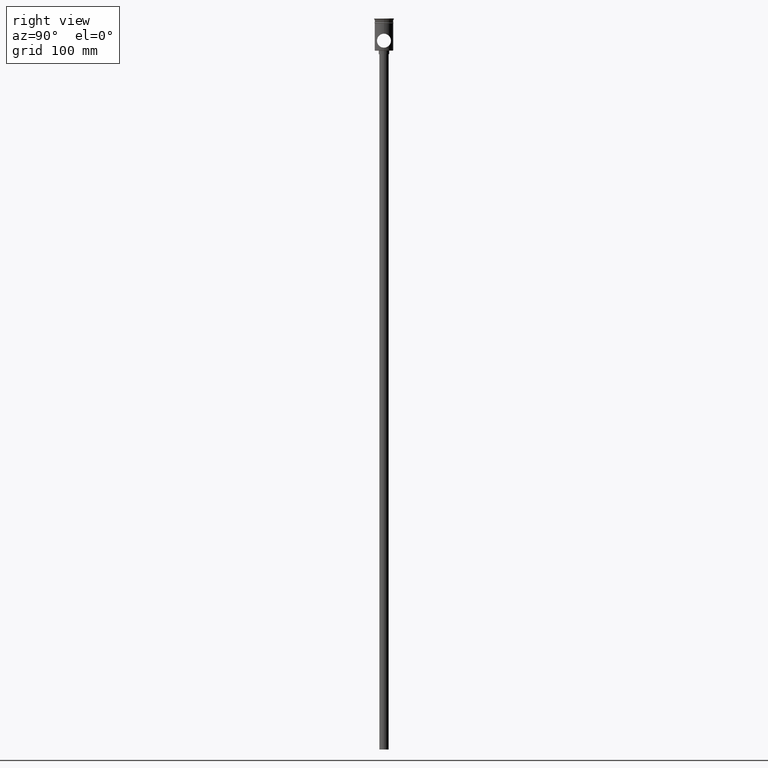
[diagram: clean part render]
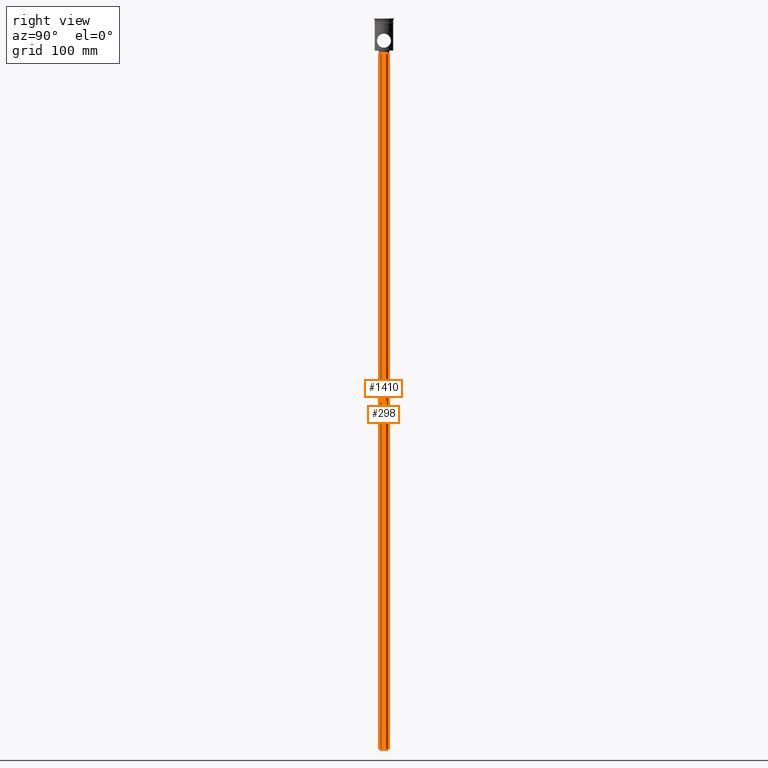
[diagram: same view with one multi-face feature highlighted, each face labeled with its STEP entity id]
A machine part, right view. The highlighted faces form ONE feature: a constant-radius fillet chain: 2 tangent blend faces with common blend radius 4 mm. The faces share edges in the B-rep.
Their STEP definitions:
[1] entity #298 (Cylinder):
#57 = DIRECTION ( 'NONE',  ( -0.000000000000000000, -0.000000000000000000, 1.000000000000000000 ) ) ;
#92 = EDGE_CURVE ( 'NONE', #973, #1023, #303, .T. ) ;
#159 = CARTESIAN_POINT ( 'NONE',  ( 0.000000000000000000, 0.000000000000000000, -627.5000000000000000 ) ) ;
#257 = AXIS2_PLACEMENT_3D ( 'NONE', #159, #588, #1070 ) ;
#298 = ADVANCED_FACE ( 'NONE', ( #1052 ), #676, .T. ) ;
#303 = CIRCLE ( 'NONE', #257, 4.000000000000000000 ) ;
#316 = CARTESIAN_POINT ( 'NONE',  ( -4.000000000000000000, 4.898587196589412829E-16, -627.5000000000000000 ) ) ;
#323 = CARTESIAN_POINT ( 'NONE',  ( 4.000000000000000000, 0.000000000000000000, -627.5000000000000000 ) ) ;
#353 = DIRECTION ( 'NONE',  ( -1.000000000000000000, 0.000000000000000000, 0.000000000000000000 ) ) ;
#412 = CARTESIAN_POINT ( 'NONE',  ( 4.000000000000000000, 0.000000000000000000, -627.5000000000000000 ) ) ;
#426 = CARTESIAN_POINT ( 'NONE',  ( -4.000000000000000000, 4.898587196589412829E-16, -627.5000000000000000 ) ) ;
#430 = DIRECTION ( 'NONE',  ( -0.000000000000000000, -0.000000000000000000, 1.000000000000000000 ) ) ;
#494 = ORIENTED_EDGE ( 'NONE', *, *, #92, .F. ) ;
#496 = VERTEX_POINT ( 'NONE', #1128 ) ;
#506 = EDGE_CURVE ( 'NONE', #973, #496, #646, .T. ) ;
#556 = DIRECTION ( 'NONE',  ( 1.000000000000000000, 0.000000000000000000, 0.000000000000000000 ) ) ;
#558 = DIRECTION ( 'NONE',  ( 0.000000000000000000, 0.000000000000000000, -1.000000000000000000 ) ) ;
#565 = CARTESIAN_POINT ( 'NONE',  ( 0.000000000000000000, 0.000000000000000000, -30.50000000000000000 ) ) ;
#571 = CIRCLE ( 'NONE', #1148, 4.000000000000000000 ) ;
#588 = DIRECTION ( 'NONE',  ( 0.000000000000000000, 0.000000000000000000, -1.000000000000000000 ) ) ;
#598 = VERTEX_POINT ( 'NONE', #678 ) ;
#608 = EDGE_CURVE ( 'NONE', #496, #598, #571, .T. ) ;
#610 = ORIENTED_EDGE ( 'NONE', *, *, #608, .T. ) ;
#638 = VECTOR ( 'NONE', #1461, 1000.000000000000000 ) ;
#646 = LINE ( 'NONE', #426, #1216 ) ;
#676 = CYLINDRICAL_SURFACE ( 'NONE', #1407, 4.000000000000000000 ) ;
#677 = EDGE_CURVE ( 'NONE', #1023, #598, #852, .T. ) ;
#678 = CARTESIAN_POINT ( 'NONE',  ( 4.000000000000000000, 0.000000000000000000, -30.50000000000000000 ) ) ;
#775 = ORIENTED_EDGE ( 'NONE', *, *, #677, .F. ) ;
#852 = LINE ( 'NONE', #412, #638 ) ;
#973 = VERTEX_POINT ( 'NONE', #316 ) ;
#1023 = VERTEX_POINT ( 'NONE', #323 ) ;
#1026 = CARTESIAN_POINT ( 'NONE',  ( 0.000000000000000000, 0.000000000000000000, -627.5000000000000000 ) ) ;
#1040 = EDGE_LOOP ( 'NONE', ( #494, #1095, #610, #775 ) ) ;
#1052 = FACE_OUTER_BOUND ( 'NONE', #1040, .T. ) ;
#1070 = DIRECTION ( 'NONE',  ( -1.000000000000000000, 0.000000000000000000, 0.000000000000000000 ) ) ;
#1095 = ORIENTED_EDGE ( 'NONE', *, *, #506, .T. ) ;
#1128 = CARTESIAN_POINT ( 'NONE',  ( -4.000000000000000000, 4.898587196589412829E-16, -30.50000000000000000 ) ) ;
#1148 = AXIS2_PLACEMENT_3D ( 'NONE', #565, #558, #353 ) ;
#1216 = VECTOR ( 'NONE', #57, 1000.000000000000000 ) ;
#1407 = AXIS2_PLACEMENT_3D ( 'NONE', #1026, #430, #556 ) ;
#1461 = DIRECTION ( 'NONE',  ( -0.000000000000000000, -0.000000000000000000, 1.000000000000000000 ) ) ;
[2] entity #1410 (Cylinder):
#39 = CIRCLE ( 'NONE', #1171, 4.000000000000000000 ) ;
#57 = DIRECTION ( 'NONE',  ( -0.000000000000000000, -0.000000000000000000, 1.000000000000000000 ) ) ;
#110 = DIRECTION ( 'NONE',  ( -1.000000000000000000, 0.000000000000000000, 0.000000000000000000 ) ) ;
#187 = AXIS2_PLACEMENT_3D ( 'NONE', #710, #906, #110 ) ;
#316 = CARTESIAN_POINT ( 'NONE',  ( -4.000000000000000000, 4.898587196589412829E-16, -627.5000000000000000 ) ) ;
#323 = CARTESIAN_POINT ( 'NONE',  ( 4.000000000000000000, 0.000000000000000000, -627.5000000000000000 ) ) ;
#346 = ORIENTED_EDGE ( 'NONE', *, *, #506, .F. ) ;
#392 = EDGE_CURVE ( 'NONE', #1023, #973, #772, .T. ) ;
#412 = CARTESIAN_POINT ( 'NONE',  ( 4.000000000000000000, 0.000000000000000000, -627.5000000000000000 ) ) ;
#426 = CARTESIAN_POINT ( 'NONE',  ( -4.000000000000000000, 4.898587196589412829E-16, -627.5000000000000000 ) ) ;
#496 = VERTEX_POINT ( 'NONE', #1128 ) ;
#501 = ORIENTED_EDGE ( 'NONE', *, *, #677, .T. ) ;
#506 = EDGE_CURVE ( 'NONE', #973, #496, #646, .T. ) ;
#598 = VERTEX_POINT ( 'NONE', #678 ) ;
#638 = VECTOR ( 'NONE', #1461, 1000.000000000000000 ) ;
#646 = LINE ( 'NONE', #426, #1216 ) ;
#669 = DIRECTION ( 'NONE',  ( 0.000000000000000000, 0.000000000000000000, -1.000000000000000000 ) ) ;
#677 = EDGE_CURVE ( 'NONE', #1023, #598, #852, .T. ) ;
#678 = CARTESIAN_POINT ( 'NONE',  ( 4.000000000000000000, 0.000000000000000000, -30.50000000000000000 ) ) ;
#698 = DIRECTION ( 'NONE',  ( -1.000000000000000000, 0.000000000000000000, 0.000000000000000000 ) ) ;
#710 = CARTESIAN_POINT ( 'NONE',  ( 0.000000000000000000, 0.000000000000000000, -627.5000000000000000 ) ) ;
#716 = ORIENTED_EDGE ( 'NONE', *, *, #720, .T. ) ;
#720 = EDGE_CURVE ( 'NONE', #598, #496, #39, .T. ) ;
#772 = CIRCLE ( 'NONE', #187, 4.000000000000000000 ) ;
#790 = CYLINDRICAL_SURFACE ( 'NONE', #1223, 4.000000000000000000 ) ;
#852 = LINE ( 'NONE', #412, #638 ) ;
#906 = DIRECTION ( 'NONE',  ( 0.000000000000000000, 0.000000000000000000, -1.000000000000000000 ) ) ;
#924 = DIRECTION ( 'NONE',  ( -0.000000000000000000, -0.000000000000000000, 1.000000000000000000 ) ) ;
#961 = EDGE_LOOP ( 'NONE', ( #346, #1308, #501, #716 ) ) ;
#973 = VERTEX_POINT ( 'NONE', #316 ) ;
#1023 = VERTEX_POINT ( 'NONE', #323 ) ;
#1091 = DIRECTION ( 'NONE',  ( 1.000000000000000000, 0.000000000000000000, 0.000000000000000000 ) ) ;
#1128 = CARTESIAN_POINT ( 'NONE',  ( -4.000000000000000000, 4.898587196589412829E-16, -30.50000000000000000 ) ) ;
#1167 = CARTESIAN_POINT ( 'NONE',  ( 0.000000000000000000, 0.000000000000000000, -30.50000000000000000 ) ) ;
#1171 = AXIS2_PLACEMENT_3D ( 'NONE', #1167, #669, #698 ) ;
#1216 = VECTOR ( 'NONE', #57, 1000.000000000000000 ) ;
#1223 = AXIS2_PLACEMENT_3D ( 'NONE', #1518, #924, #1091 ) ;
#1308 = ORIENTED_EDGE ( 'NONE', *, *, #392, .F. ) ;
#1375 = FACE_OUTER_BOUND ( 'NONE', #961, .T. ) ;
#1410 = ADVANCED_FACE ( 'NONE', ( #1375 ), #790, .T. ) ;
#1461 = DIRECTION ( 'NONE',  ( -0.000000000000000000, -0.000000000000000000, 1.000000000000000000 ) ) ;
#1518 = CARTESIAN_POINT ( 'NONE',  ( 0.000000000000000000, 0.000000000000000000, -627.5000000000000000 ) ) ;